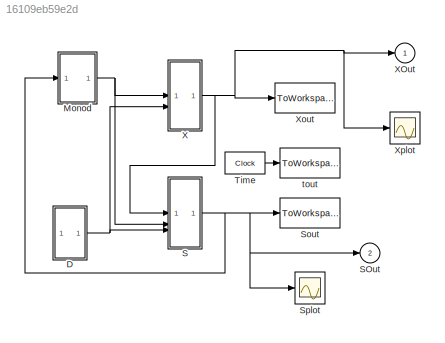
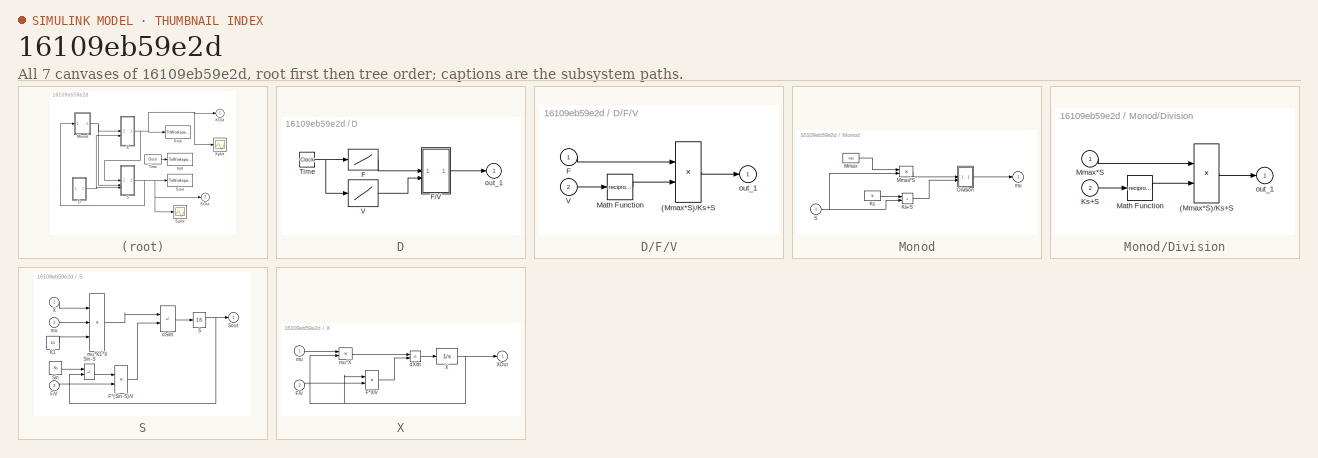
[diagram: thumbnail index - all 7 canvases of the model, root first then tree order]
MODEL slx_16109eb59e2d
KIND model
CONFIG AbsTol = 1e-3
CONFIG EnableMultiTasking = on
CONFIG FixedStep = auto
CONFIG MaxStep = 0.001
CONFIG MinStep = auto
CONFIG RelTol = 1e-3
CONFIG SampleTimeConstraint = Unconstrained
CONFIG SolverName = ode45
CONFIG StartTime =     0.0167
CONFIG StopTime = 7.6
BLOCK [SubSystem] D
  ShowPortLabels = none
BLOCK [Lookup] D/F
  InputValues = tfe
  Table = Fout
BLOCK [SubSystem] D/F//V
  ShowPortLabels = none
BLOCK [Product] D/F//V/(Mmax*S)//Ks+S
  InputSameDT = on
  OutDataTypeStr = Inherit: Same as first input
  RndMeth = Zero
  SaturateOnIntegerOverflow = on
BLOCK [Inport] D/F//V/F
BLOCK [Math] D/F//V/Math Function
  Operator = reciprocal
  SignedPower = on
BLOCK [Inport] D/F//V/V
  Port = 2
BLOCK [Outport] D/F//V/out_1
BLOCK [Clock] D/Time
BLOCK [Lookup] D/V
  InputValues = tfe
  Table = Vout
BLOCK [Outport] D/out_1
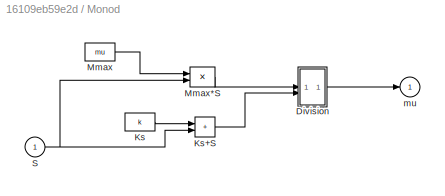
BLOCK [SubSystem] Monod
  ShowPortLabels = none
BLOCK [SubSystem] Monod/Division
  ShowPortLabels = none
BLOCK [Product] Monod/Division/(Mmax*S)//Ks+S
  InputSameDT = on
  OutDataTypeStr = Inherit: Same as first input
  RndMeth = Zero
  SaturateOnIntegerOverflow = on
BLOCK [Inport] Monod/Division/Ks+S
  Port = 2
BLOCK [Math] Monod/Division/Math Function
  Operator = reciprocal
  SignedPower = on
BLOCK [Inport] Monod/Division/Mmax*S
BLOCK [Outport] Monod/Division/out_1
BLOCK [Constant] Monod/Ks
  Value = k
BLOCK [Sum] Monod/Ks+S
  IconShape = rectangular
  InputSameDT = on
  OutDataTypeStr = Inherit: Same as first input
  SaturateOnIntegerOverflow = on
BLOCK [Constant] Monod/Mmax
  Value = mu
BLOCK [Product] Monod/Mmax*S
  InputSameDT = on
  OutDataTypeStr = Inherit: Same as first input
  RndMeth = Zero
  SaturateOnIntegerOverflow = on
BLOCK [Inport] Monod/S
BLOCK [Outport] Monod/mu
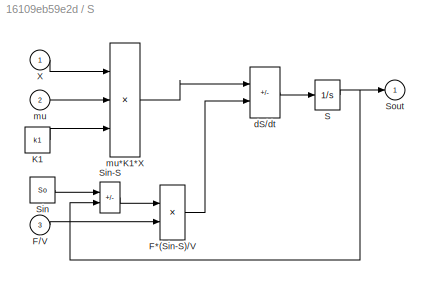
BLOCK [SubSystem] S
  ShowPortLabels = none
BLOCK [Product] S/F*(Sin-S)//V
  InputSameDT = on
  OutDataTypeStr = Inherit: Same as first input
  RndMeth = Zero
  SaturateOnIntegerOverflow = on
BLOCK [Inport] S/F//V
  Port = 3
BLOCK [Constant] S/K1
  Value = k1
BLOCK [Integrator] S/S
  InitialCondition = S0
  LowerSaturationLimit = 0
  UpperSaturationLimit = 1000
BLOCK [Constant] S/Sin
  Value = So
BLOCK [Sum] S/Sin-S
  IconShape = rectangular
  InputSameDT = on
  Inputs = +-
  OutDataTypeStr = Inherit: Same as first input
  SaturateOnIntegerOverflow = on
BLOCK [Outport] S/Sout
BLOCK [Inport] S/X
BLOCK [Sum] S/dS//dt
  IconShape = rectangular
  InputSameDT = on
  Inputs = -+
  OutDataTypeStr = Inherit: Same as first input
  SaturateOnIntegerOverflow = on
BLOCK [Inport] S/mu
  Port = 2
BLOCK [Product] S/mu*K1*X
  InputSameDT = on
  Inputs = 3
  OutDataTypeStr = Inherit: Same as first input
  RndMeth = Zero
  SaturateOnIntegerOverflow = on
BLOCK [Outport] SOut
  Port = 2
BLOCK [ToWorkspace] Sout
  MaxDataPoints = Inf
  SampleTime = -1
  VariableName = Sout
BLOCK [Scope] Splot
  Floating = off
  NumInputPorts = 1
  ScopeSpecificationString = Simulink.scopes.TimeScopeBlockCfg('CurrentConfiguration', extmgr.ConfigurationSet(extmgr.Configuration('Core','General UI',true),extmgr.Configuration('Core','Source UI',true),extmgr.Configuration('Sources','WiredSimulink',true),extmgr.Configuration('Visuals','Time Domain',true,'SerializedDisplays',{struct('MinYLimReal','-0.08232','MaxYLimReal','0.91138','YLabelReal','','MinYLimMag','0.00000','MaxY...<+1583ch>
BLOCK [Clock] Time
  DisplayTime = on
BLOCK [SubSystem] X
  ShowPortLabels = none
BLOCK [Product] X/F*X//V
  InputSameDT = on
  OutDataTypeStr = Inherit: Same as first input
  RndMeth = Zero
  SaturateOnIntegerOverflow = on
BLOCK [Inport] X/F//V
  Port = 2
BLOCK [Integrator] X/X
  InitialCondition = X0
  LowerSaturationLimit = 0
  UpperSaturationLimit = 1000
BLOCK [Outport] X/XOut
BLOCK [Sum] X/dX//dt
  IconShape = rectangular
  InputSameDT = on
  Inputs = +-
  OutDataTypeStr = Inherit: Same as first input
  SaturateOnIntegerOverflow = on
BLOCK [Inport] X/mu
BLOCK [Product] X/mu*X
  InputSameDT = on
  OutDataTypeStr = Inherit: Same as first input
  RndMeth = Zero
  SaturateOnIntegerOverflow = on
BLOCK [Outport] XOut
BLOCK [ToWorkspace] Xout
  MaxDataPoints = Inf
  SampleTime = -1
  VariableName = Xout
BLOCK [Scope] Xplot
  Floating = off
  NumInputPorts = 1
  ScopeSpecificationString = Simulink.scopes.TimeScopeBlockCfg('CurrentConfiguration', extmgr.ConfigurationSet(extmgr.Configuration('Core','General UI',true),extmgr.Configuration('Core','Source UI',true),extmgr.Configuration('Sources','WiredSimulink',true,'DataLoggingVariableName','ScopeData1'),extmgr.Configuration('Visuals','Time Domain',true,'SerializedDisplays',{struct('MinYLimReal','5.43084','MaxYLimReal','8.52433','YLabe...<+1559ch>
BLOCK [ToWorkspace] tout
  MaxDataPoints = Inf
  SampleTime = -1
  VariableName = tout
LINE D/F//V/(Mmax*S)//Ks+S:1 -> D/F//V/out_1:1
LINE D/F//V/F:1 -> D/F//V/(Mmax*S)//Ks+S:1
LINE D/F//V/Math Function:1 -> D/F//V/(Mmax*S)//Ks+S:2
LINE D/F//V/V:1 -> D/F//V/Math Function:1
LINE D/F//V:1 -> D/out_1:1
LINE D/F:1 -> D/F//V:1
NET D/Time:1 -> D/F:1, D/V:1
LINE D/V:1 -> D/F//V:2
NET D:1 -> S:3, X:2
LINE Monod/Division/(Mmax*S)//Ks+S:1 -> Monod/Division/out_1:1
LINE Monod/Division/Ks+S:1 -> Monod/Division/Math Function:1
LINE Monod/Division/Math Function:1 -> Monod/Division/(Mmax*S)//Ks+S:2
LINE Monod/Division/Mmax*S:1 -> Monod/Division/(Mmax*S)//Ks+S:1
LINE Monod/Division:1 -> Monod/mu:1
LINE Monod/Ks+S:1 -> Monod/Division:2
LINE Monod/Ks:1 -> Monod/Ks+S:1
LINE Monod/Mmax*S:1 -> Monod/Division:1
LINE Monod/Mmax:1 -> Monod/Mmax*S:1
NET Monod/S:1 -> Monod/Ks+S:2, Monod/Mmax*S:2
NET Monod:1 -> S:2, X:1
LINE S/F*(Sin-S)//V:1 -> S/dS//dt:2
LINE S/F//V:1 -> S/F*(Sin-S)//V:2
LINE S/K1:1 -> S/mu*K1*X:3
NET S/S:1 -> S/Sin-S:2, S/Sout:1
LINE S/Sin-S:1 -> S/F*(Sin-S)//V:1
LINE S/Sin:1 -> S/Sin-S:1
LINE S/X:1 -> S/mu*K1*X:1
LINE S/dS//dt:1 -> S/S:1
LINE S/mu*K1*X:1 -> S/dS//dt:1
LINE S/mu:1 -> S/mu*K1*X:2
NET S:1 -> Monod:1, SOut:1, Sout:1, Splot:1
LINE Time:1 -> tout:1
LINE X/F*X//V:1 -> X/dX//dt:2
LINE X/F//V:1 -> X/F*X//V:2
NET X/X:1 -> X/F*X//V:1, X/XOut:1, X/mu*X:2
LINE X/dX//dt:1 -> X/X:1
LINE X/mu*X:1 -> X/dX//dt:1
LINE X/mu:1 -> X/mu*X:1
NET X:1 -> S:1, XOut:1, Xout:1, Xplot:1
note: NET lines group one-source signal fan-out (src -> all destinations, sorted); 1:1 wires keep LINE
